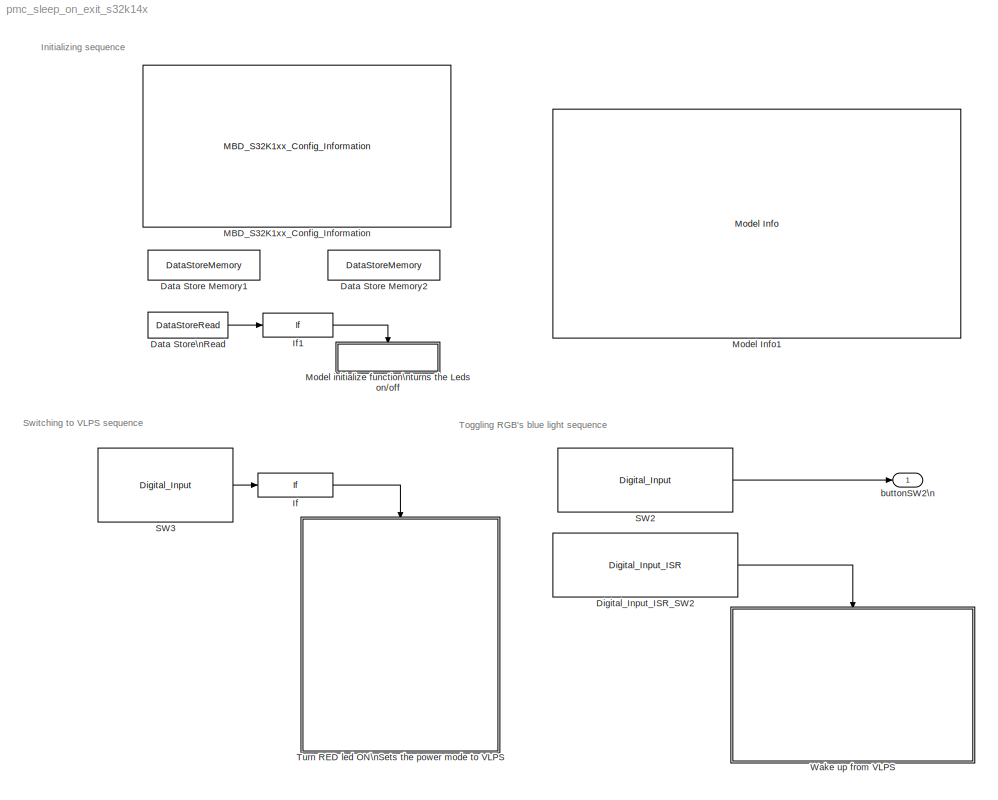
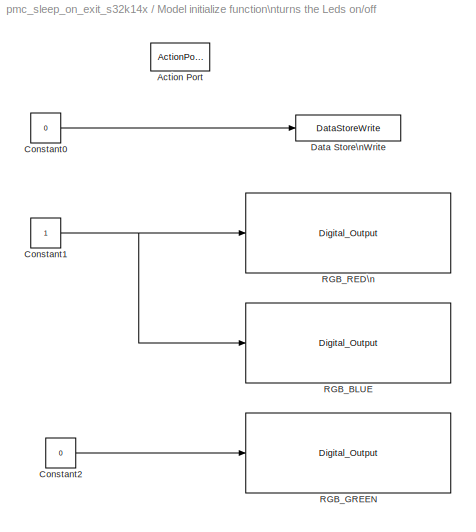
MODEL pmc_sleep_on_exit_s32k14x
KIND model
CONFIG InitFcn = mbd_s32k_consistency_checks(bdroot(gcs));
BLOCK [DataStoreMemory] Data Store Memory1
  DataStoreName = blue_flag
  InitialValue = 1
  OutDataTypeStr = boolean
  ReadBeforeWriteMsg = warning
  SID = 52
  ShowAdditionalParam = off
  WriteAfterReadMsg = warning
  WriteAfterWriteMsg = warning
BLOCK [DataStoreMemory] Data Store Memory2
  DataStoreName = init_flag
  InitialValue = 1
  OutDataTypeStr = boolean
  ReadBeforeWriteMsg = warning
  SID = 531
  ShowAdditionalParam = off
  WriteAfterReadMsg = warning
  WriteAfterWriteMsg = warning
BLOCK [DataStoreRead] Data Store\nRead
  DataStoreName = init_flag
  Ports = [0, 1]
  SID = 544
BLOCK [Reference] Digital_Input_ISR_SW2  REF=mbd_s32k1xx_ec_toolbox/GPIO Blocks/Digital_Input_ISR
  Ports = [0, 1]
  SID = 9
  SourceBlock = mbd_s32k1xx_ec_toolbox/GPIO Blocks/Digital_Input_ISR
  SourceType = gpi_s32k_isr
  gpio_pin = PTC12: [PTC12 | Port C I/O]
  irqc = on rising-edge
  prio = 1
BLOCK [If] If
  IfExpression = u1 == 1
  Ports = [1, 1]
  SID = 506
  ShowElse = off
BLOCK [If] If1
  IfExpression = u1 == 1
  Ports = [1, 1]
  SID = 542
  ShowElse = off
BLOCK [Reference] MBD_S32K1xx_Config_Information  REF=mbd_s32k1xx_ec_toolbox/MBD_S32K1xx_Config_Information
  ADC_PcrCheckEnDis = on
  AMMCLIB_PcrCheckEnDis = on
  CMP_PcrCheckEnDis = on
  CSEc_PcrCheckEnDis = on
  ConfigParams_PcrCheckEnDis = on
  FM_PcrCheckEnDis = on
  FTM_Dual_Edge_Inputs_PcrCheckEnDis = on
  FTM_Hall_Sensor_Inputs_PcrCheckEnDis = on
  FTM_Input_Edge_Inputs_PcrCheckEnDis = on
  FTM_PWM_PcrCheckEnDis = on
  FTM_Quadrature_Inputs_PcrCheckEnDis = on
  FlexCAN_PcrCheckEnDis = on
  FlexIO_PcrCheckEnDis = on
  GPIO_InputPcrCheckEnDis = on
  GPIO_OutputPcrCheckEnDis = on
  LIN_PcrCheckEnDis = on
  LPI2C_PcrCheckEnDis = on
  LPSPI_PcrCheckEnDis = on
  LPTMR_PcrCheckEnDis = on
  LPUART_PcrCheckEnDis = on
  ModelRef_PcrCheckEnDis = on
  PDB0_PcrCheckEnDis = on
  PIT_PcrCheckEnDis = on
  Ports = []
  Profile_PcrCheckEnDis = on
  RTC_PcrCheckEnDis = on
  SBC_PcrCheckEnDis = on
  SID = 568
  SourceBlock = mbd_s32k1xx_ec_toolbox/MBD_S32K1xx_Config_Information
  SourceType = MBDTBX_EC_S32K
  WDOG_PcrCheckEnDis = on
  config_params = []
  disp_str = Target : S32K144-64KB_SRAM\nPackage : 100-pin\nSystem clock : 80 MHz\nXTAL clock : External 8 MHz\nCompiler : IAR\nTarget Type : FLASH\nDownload Code after build : off\nStep Tick Interrupt Priority : 15
  ds_import_enable = on
  eDMA_PcrCheckEnDis = on
  gcc_target_assemble_opts = -mcpu=cortex-m4 -mthumb -mfloat-abi=hard -mfpu=fpv4-sp-d16 -g
  gcc_target_compile_opts = -mcpu=cortex-m4 -mthumb -mfloat-abi=hard -mfpu=fpv4-sp-d16 -O1 -g -gstrict-dwarf
  gcc_target_default_lcf = on
  gcc_target_link_opts = -mcpu=cortex-m4 -mthumb -mfloat-abi=hard -mfpu=fpv4-sp-d16
  gcc_target_user_lcf = S32K144_48_flash.ld
  ghs_target_assemble_opts = -cpu=cortexm4f -fpu=vfpv4_d16
  ghs_target_compile_opts = -cpu=cortexm4f -thumb -DARM_MATH_CM4 -fpu=vfpv4_d16 -fsingle -Ogeneral -Wundef -Wimplicit-int -Wshadow -Wtrigraphs --no_commons --gnu_asm -gnu99 -gdwarf-2 -G
  ghs_target_default_lcf = on
  ghs_target_link_opts = -cpu=cortexm4f -thumb -fpu=vfpv4_d16
  ghs_target_user_lcf = S32K144_48_flash.ld
  iar_target_assemble_opts = --cpu Cortex-M4F --thumb --fpu VFPv4_sp
  iar_target_compile_opts = --cpu=Cortex-M4F --thumb --fpu=VFPv4_sp -Ol -e --debug --dlib_config normal
  iar_target_default_lcf = on
  iar_target_link_opts = --no_exceptions --vfe --inline
  iar_target_user_lcf = S32K144_48_flash.icf
  mbdt_ver = 0
  mcu_steptick_prio = 15
  mcu_steptick_timer = LPIT Channel 0
  mcu_system_clock_freq = 80
  mcu_target_name = S32K144
  mcu_target_package = 100-LQFP
  mcu_target_sram_size = 48KB
  mcu_xtal_freq = External 8
  pil_download_enable = off
  pil_download_rate = 57600
  pil_opensda_drive = Custom
  pil_opensda_drive_custom = D
  pil_uart_instance = 0
  pil_uart_rx = PTA2: [LPUART0_RX | Receive]
  pil_uart_tx = PTA3: [LPUART0_TX | Transmit]
  rbl_com_port = Custom
  rbl_com_port_custom = COM1
  rbl_download_enable = on
  rbl_download_interface = OpenSDA
  rbl_restart_request = off
  rbl_start_delay = 5000
  target_compiler = GCC
  target_memory = FLASH
BLOCK [Reference] Model Info1  REF=simulink/Model-Wide\nUtilities/Model Info
  DisplayStringWithTags = Model Name: %<ModelName>\n\nDescription: %<Description>
  Frame = off
  HorizontalTextAlignment = Left
  LeftAlignmentValue = 0.02
  MaskDisplayString = Model Name: pmc_sleep_on_exit_s32k14x\\n\\nDescription: This model demonstrates the \"Power Management\" functionality by setting the \\nprocessor to run in the Very low power stop (VLSP) mode. When the SW2 button is \\npressed, the processor wakes up and toggles the blue light of the RGB led. When exits\\nthe SW2 push button interrupts the processor returns to the VLPS mode.\\n\\nValidation: When...<+554ch>
  Ports = []
  SID = 558
  SourceBlock = simulink/Model-Wide\nUtilities/Model Info
  SourceProductBaseCode = SL
  SourceProductName = Simulink
  SourceType = CMBlock
BLOCK [SubSystem] Model initialize function\nturns the Leds on//off
  Ports = [0, 0, 0, 0, 0, 0, 0, 1]
  RequestExecContextInheritance = off
  SID = 532
  TreatAsAtomicUnit = on
  Variant = off
BLOCK [ActionPort] Model initialize function\nturns the Leds on//off/Action Port
  SID = 533
BLOCK [Constant] Model initialize function\nturns the Leds on//off/Constant0
  OutDataTypeStr = boolean
  SID = 546
  Value = 0
BLOCK [Constant] Model initialize function\nturns the Leds on//off/Constant1
  OutDataTypeStr = boolean
  SID = 535
BLOCK [Constant] Model initialize function\nturns the Leds on//off/Constant2
  OutDataTypeStr = boolean
  SID = 551
  Value = 0
BLOCK [DataStoreWrite] Model initialize function\nturns the Leds on//off/Data Store\nWrite
  DataStoreName = init_flag
  Ports = [1]
  SID = 545
BLOCK [Reference] Model initialize function\nturns the Leds on//off/RGB_BLUE  REF=mbd_s32k1xx_ec_toolbox/GPIO Blocks/Digital_Output
  Ports = [1]
  SID = 550
  SourceBlock = mbd_s32k1xx_ec_toolbox/GPIO Blocks/Digital_Output
  SourceType = gpio_s32k_output
  drive_strength = Low
  gpio_pin = PTD0: [PTD0 | Port D I/O]
  init_val = Low
BLOCK [Reference] Model initialize function\nturns the Leds on//off/RGB_GREEN  REF=mbd_s32k1xx_ec_toolbox/GPIO Blocks/Digital_Output
  Ports = [1]
  SID = 540
  SourceBlock = mbd_s32k1xx_ec_toolbox/GPIO Blocks/Digital_Output
  SourceType = gpio_s32k_output
  drive_strength = Low
  gpio_pin = PTD16: [PTD16 | Port D I/O]
  init_val = Low
BLOCK [Reference] Model initialize function\nturns the Leds on//off/RGB_RED\n  REF=mbd_s32k1xx_ec_toolbox/GPIO Blocks/Digital_Output
  Ports = [1]
  SID = 541
  SourceBlock = mbd_s32k1xx_ec_toolbox/GPIO Blocks/Digital_Output
  SourceType = gpio_s32k_output
  drive_strength = Low
  gpio_pin = PTD15: [PTD15 | Port D I/O]
  init_val = Low
BLOCK [Reference] SW2  REF=mbd_s32k1xx_ec_toolbox/GPIO Blocks/Digital_Input
  Ports = [0, 1]
  SID = 39
  SourceBlock = mbd_s32k1xx_ec_toolbox/GPIO Blocks/Digital_Input
  SourceType = gpio_s32k_input
  gpio_pin = PTC12: [PTC12 | Port C I/O]
  passive_filter = off
  pull_resistor = None
BLOCK [Reference] SW3  REF=mbd_s32k1xx_ec_toolbox/GPIO Blocks/Digital_Input
  Ports = [0, 1]
  SID = 40
  SourceBlock = mbd_s32k1xx_ec_toolbox/GPIO Blocks/Digital_Input
  SourceType = gpio_s32k_input
  gpio_pin = PTC13: [PTC13 | Port C I/O]
  passive_filter = off
  pull_resistor = None
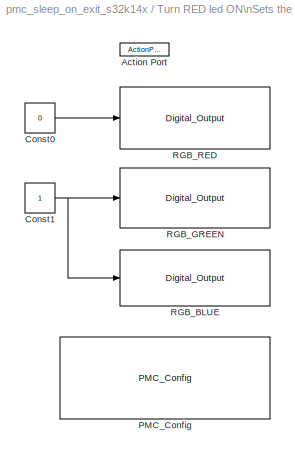
BLOCK [SubSystem] Turn RED led ON\nSets the power mode to VLPS
  Ports = [0, 0, 0, 0, 0, 0, 0, 1]
  RequestExecContextInheritance = off
  SID = 11
  TreatAsAtomicUnit = on
  Variant = off
BLOCK [ActionPort] Turn RED led ON\nSets the power mode to VLPS/Action Port
  SID = 524
BLOCK [Constant] Turn RED led ON\nSets the power mode to VLPS/Const0
  OutDataTypeStr = boolean
  SID = 552
  Value = 0
BLOCK [Constant] Turn RED led ON\nSets the power mode to VLPS/Const1
  OutDataTypeStr = boolean
  SID = 553
BLOCK [Reference] Turn RED led ON\nSets the power mode to VLPS/PMC_Config  REF=mbd_s32k1xx_ec_toolbox/Core and System Blocks/PMC Blocks/PMC_Config
  Ports = []
  SID = 569
  SourceBlock = mbd_s32k1xx_ec_toolbox/Core and System Blocks/PMC Blocks/PMC_Config
  SourceType = pmc_s32k_config
  callback_after = off
  callback_before = off
  callback_before_after = off
  power_mode = Very Low Power Stop (VLPS)
  show_adv_opts = on
  sleep_on_exit = on
BLOCK [Reference] Turn RED led ON\nSets the power mode to VLPS/RGB_BLUE  REF=mbd_s32k1xx_ec_toolbox/GPIO Blocks/Digital_Output
  Ports = [1]
  SID = 555
  SourceBlock = mbd_s32k1xx_ec_toolbox/GPIO Blocks/Digital_Output
  SourceType = gpio_s32k_output
  drive_strength = Low
  gpio_pin = PTD0: [PTD0 | Port D I/O]
  init_val = Low
BLOCK [Reference] Turn RED led ON\nSets the power mode to VLPS/RGB_GREEN  REF=mbd_s32k1xx_ec_toolbox/GPIO Blocks/Digital_Output
  Ports = [1]
  SID = 556
  SourceBlock = mbd_s32k1xx_ec_toolbox/GPIO Blocks/Digital_Output
  SourceType = gpio_s32k_output
  drive_strength = Low
  gpio_pin = PTD16: [PTD16 | Port D I/O]
  init_val = Low
BLOCK [Reference] Turn RED led ON\nSets the power mode to VLPS/RGB_RED  REF=mbd_s32k1xx_ec_toolbox/GPIO Blocks/Digital_Output
  Ports = [1]
  SID = 557
  SourceBlock = mbd_s32k1xx_ec_toolbox/GPIO Blocks/Digital_Output
  SourceType = gpio_s32k_output
  drive_strength = Low
  gpio_pin = PTD15: [PTD15 | Port D I/O]
  init_val = Low
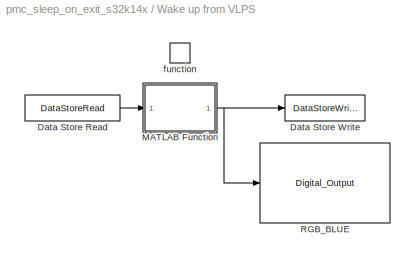
BLOCK [SubSystem] Wake up from VLPS
  Ports = [0, 0, 0, 1]
  RequestExecContextInheritance = off
  SID = 19
  TreatAsAtomicUnit = on
  Variant = off
BLOCK [DataStoreRead] Wake up from VLPS/Data Store Read
  DataStoreName = blue_flag
  Ports = [0, 1]
  SID = 526
BLOCK [DataStoreWrite] Wake up from VLPS/Data Store Write
  DataStoreName = blue_flag
  Ports = [1]
  SID = 527
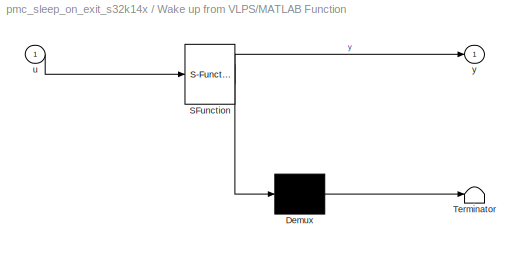
BLOCK [SubSystem] Wake up from VLPS/MATLAB Function
  ErrorFcn = Stateflow.Translate.translate
  PermitHierarchicalResolution = ExplicitOnly
  Ports = [1, 1]
  RequestExecContextInheritance = off
  SFBlockType = MATLAB Function
  SID = 374
  TreatAsAtomicUnit = on
  Variant = off
BLOCK [Demux] Wake up from VLPS/MATLAB Function/ Demux 
  Outputs = 1
  Ports = [1, 1]
  SID = 374::32
BLOCK [S-Function] Wake up from VLPS/MATLAB Function/ SFunction 
  EnableBusSupport = off
  FunctionName = sf_sfun
  PortCounts = [1 2]
  Ports = [1, 2]
  SFcnIsStateOwnerBlock = off
  SFunctionDeploymentMode = off
  SID = 374::31
  Tag = Stateflow S-Function pmc_sleep_on_exit_s32k14x 2
BLOCK [Terminator] Wake up from VLPS/MATLAB Function/ Terminator 
  SID = 374::33
BLOCK [Inport] Wake up from VLPS/MATLAB Function/u
  IconDisplay = Port number
  SID = 374::1
BLOCK [Outport] Wake up from VLPS/MATLAB Function/y
  IconDisplay = Port number
  SID = 374::5
BLOCK [Reference] Wake up from VLPS/RGB_BLUE  REF=mbd_s32k1xx_ec_toolbox/GPIO Blocks/Digital_Output
  Ports = [1]
  SID = 528
  SourceBlock = mbd_s32k1xx_ec_toolbox/GPIO Blocks/Digital_Output
  SourceType = gpio_s32k_output
  drive_strength = Low
  gpio_pin = PTD0: [PTD0 | Port D I/O]
  init_val = Low
BLOCK [TriggerPort] Wake up from VLPS/function
  Ports = []
  SID = 20
  StatesWhenEnabling = held
  TriggerType = function-call
  VariantControl = Variant
BLOCK [Outport] buttonSW2\n
  IconDisplay = Port number
  SID = 41
ANNOTATION (root): Initializing sequence
ANNOTATION (root): Switching to VLPS sequence
ANNOTATION (root): Toggling RGB's blue light sequence
LINE Data Store\nRead:1 -> If1:1
LINE Digital_Input_ISR_SW2:1 -> Wake up from VLPS:trigger
LINE If1:1 -> Model initialize function\nturns the Leds on//off:ifaction
LINE If:1 -> Turn RED led ON\nSets the power mode to VLPS:ifaction
LINE Model initialize function\nturns the Leds on//off/Constant0:1 -> Model initialize function\nturns the Leds on//off/Data Store\nWrite:1
NET Model initialize function\nturns the Leds on//off/Constant1:1 -> Model initialize function\nturns the Leds on//off/RGB_BLUE:1, Model initialize function\nturns the Leds on//off/RGB_RED\n:1
LINE Model initialize function\nturns the Leds on//off/Constant2:1 -> Model initialize function\nturns the Leds on//off/RGB_GREEN:1
LINE SW2:1 -> buttonSW2\n:1
LINE SW3:1 -> If:1
LINE Turn RED led ON\nSets the power mode to VLPS/Const0:1 -> Turn RED led ON\nSets the power mode to VLPS/RGB_RED:1
NET Turn RED led ON\nSets the power mode to VLPS/Const1:1 -> Turn RED led ON\nSets the power mode to VLPS/RGB_BLUE:1, Turn RED led ON\nSets the power mode to VLPS/RGB_GREEN:1
LINE Wake up from VLPS/Data Store Read:1 -> Wake up from VLPS/MATLAB Function:1
LINE Wake up from VLPS/MATLAB Function/ Demux :1 -> Wake up from VLPS/MATLAB Function/ Terminator :1
LINE Wake up from VLPS/MATLAB Function/ SFunction :1 -> Wake up from VLPS/MATLAB Function/ Demux :1
LINE Wake up from VLPS/MATLAB Function/ SFunction :2 -> Wake up from VLPS/MATLAB Function/y:1
LINE Wake up from VLPS/MATLAB Function/u:1 -> Wake up from VLPS/MATLAB Function/ SFunction :1
NET Wake up from VLPS/MATLAB Function:1 -> Wake up from VLPS/Data Store Write:1, Wake up from VLPS/RGB_BLUE:1
note: NET lines group one-source signal fan-out (src -> all destinations, sorted); 1:1 wires keep LINE
CHART Wake up from VLPS/MATLAB Function states=1 transitions=1
  STATE_LABEL 'eML_blk_kernel()'
